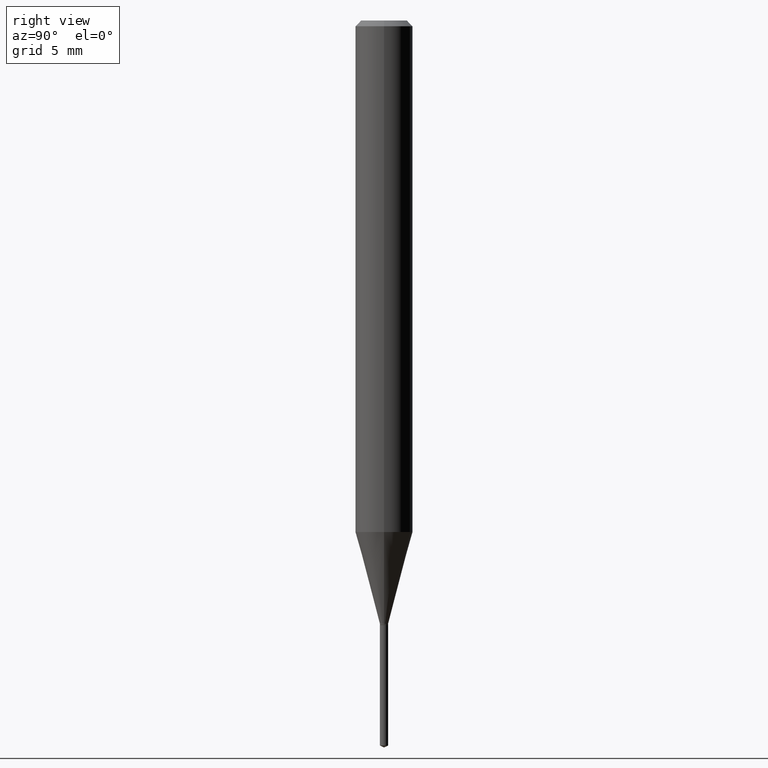
[diagram: clean part render]
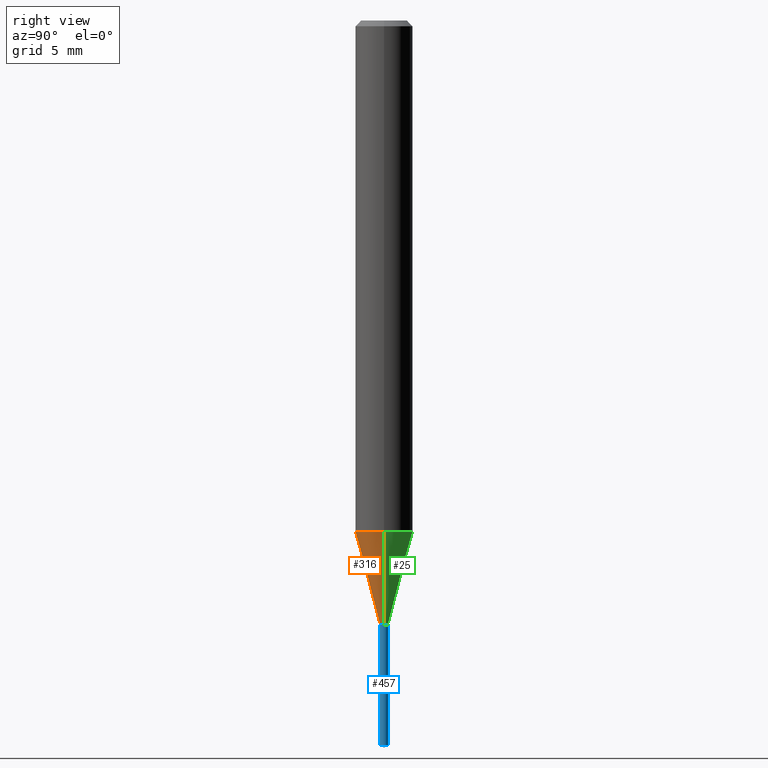
[diagram: same view with three faces highlighted in distinct colors, each labeled with its STEP entity id]
A machine part, right view with three faces highlighted in distinct colors.
Their STEP definitions:

[orange] entity #316 — the highlighted conical surface has half-angle 15 deg.
#3 = LINE ( 'NONE', #297, #263 ) ;
#5 = DIRECTION ( 'NONE',  ( 0.2588190451025211836, 1.565188264969622559E-15, 0.9659258262890679791 ) ) ;
#29 = ORIENTED_EDGE ( 'NONE', *, *, #163, .F. ) ;
#38 = AXIS2_PLACEMENT_3D ( 'NONE', #52, #137, #204 ) ;
#52 = CARTESIAN_POINT ( 'NONE',  ( 3.036294069759465269E-29, -4.335023230307649634E-15, -1.241600000000000037 ) ) ;
#71 = ORIENTED_EDGE ( 'NONE', *, *, #437, .T. ) ;
#86 = CARTESIAN_POINT ( 'NONE',  ( -0.008449999999999999178, -4.274982369135920681E-15, -1.241600000000000037 ) ) ;
#107 = VECTOR ( 'NONE', #230, 39.37007874015748854 ) ;
#118 = AXIS2_PLACEMENT_3D ( 'NONE', #285, #436, #385 ) ;
#133 = VERTEX_POINT ( 'NONE', #459 ) ;
#137 = DIRECTION ( 'NONE',  ( -2.445468806185136597E-29, 3.491481338843145583E-15, 1.000000000000000000 ) ) ;
#141 = VERTEX_POINT ( 'NONE', #270 ) ;
#163 = EDGE_CURVE ( 'NONE', #250, #334, #237, .T. ) ;
#175 = CARTESIAN_POINT ( 'NONE',  ( -0.008449999999999999178, -4.278473850474763688E-15, -1.241600000000000037 ) ) ;
#204 = DIRECTION ( 'NONE',  ( 1.000000000000000000, -6.982962677686293532E-15, 0.000000000000000000 ) ) ;
#228 = CIRCLE ( 'NONE', #118, 0.05905000000000013710 ) ;
#230 = DIRECTION ( 'NONE',  ( -0.2588190451025211836, 5.211531920934547886E-15, 0.9659258262890679791 ) ) ;
#237 = LINE ( 'NONE', #86, #107 ) ;
#248 = FACE_OUTER_BOUND ( 'NONE', #484, .T. ) ;
#250 = VERTEX_POINT ( 'NONE', #175 ) ;
#263 = VECTOR ( 'NONE', #5, 39.37007874015748854 ) ;
#270 = CARTESIAN_POINT ( 'NONE',  ( 0.05905000000000013710, -4.088029657462817781E-15, -1.052758229137014556 ) ) ;
#285 = CARTESIAN_POINT ( 'NONE',  ( 2.574487409809273648E-29, -3.675685711345442861E-15, -1.052758229137014556 ) ) ;
#297 = CARTESIAN_POINT ( 'NONE',  ( 0.008449999999999999178, -4.394029264934098821E-15, -1.241600000000000037 ) ) ;
#298 = ORIENTED_EDGE ( 'NONE', *, *, #341, .F. ) ;
#316 = ADVANCED_FACE ( 'NONE', ( #248 ), #460, .T. ) ;
#334 = VERTEX_POINT ( 'NONE', #364 ) ;
#340 = DIRECTION ( 'NONE',  ( 1.000000000000000000, -6.982962677686293532E-15, 0.000000000000000000 ) ) ;
#341 = EDGE_CURVE ( 'NONE', #334, #141, #228, .T. ) ;
#364 = CARTESIAN_POINT ( 'NONE',  ( -0.05905000000000013710, -3.256110225879102579E-15, -1.052758229137014556 ) ) ;
#368 = DIRECTION ( 'NONE',  ( -2.445468806185136597E-29, 3.491481338843145583E-15, 1.000000000000000000 ) ) ;
#385 = DIRECTION ( 'NONE',  ( 1.000000000000000000, -6.982962677686264344E-15, 0.000000000000000000 ) ) ;
#389 = AXIS2_PLACEMENT_3D ( 'NONE', #485, #368, #340 ) ;
#436 = DIRECTION ( 'NONE',  ( -2.445468806185136597E-29, 3.491481338843145583E-15, 1.000000000000000000 ) ) ;
#437 = EDGE_CURVE ( 'NONE', #250, #133, #480, .T. ) ;
#442 = EDGE_CURVE ( 'NONE', #133, #141, #3, .T. ) ;
#459 = CARTESIAN_POINT ( 'NONE',  ( 0.008449999999999999178, -4.394029264934098821E-15, -1.241600000000000037 ) ) ;
#460 = CONICAL_SURFACE ( 'NONE', #38, 0.008449999999999999178, 0.2617993877991499074 ) ;
#478 = ORIENTED_EDGE ( 'NONE', *, *, #442, .T. ) ;
#480 = CIRCLE ( 'NONE', #389, 0.008449999999999999178 ) ;
#484 = EDGE_LOOP ( 'NONE', ( #29, #71, #478, #298 ) ) ;
#485 = CARTESIAN_POINT ( 'NONE',  ( 3.036294069759465269E-29, -4.335023230307649634E-15, -1.241600000000000037 ) ) ;

[blue] entity #457 — the highlighted cylindrical surface (edge-blend (fillet) strip) has radius 0.2146 mm, axis along (-0, 0, 1).
#11 = CARTESIAN_POINT ( 'NONE',  ( -5.900603462641852024E-17, -0.008450000000004342926, -1.244099999999999984 ) ) ;
#13 = CIRCLE ( 'NONE', #408, 0.008449999999999999178 ) ;
#33 = CARTESIAN_POINT ( 'NONE',  ( 6.004086117175886799E-17, 0.008449999999995655431, -1.244099999999999984 ) ) ;
#40 = EDGE_CURVE ( 'NONE', #152, #94, #367, .T. ) ;
#45 = VECTOR ( 'NONE', #292, 39.37007874015748143 ) ;
#47 = CARTESIAN_POINT ( 'NONE',  ( 6.004086117176494469E-17, 0.008449999999994789804, -1.492159700288590019 ) ) ;
#63 = EDGE_LOOP ( 'NONE', ( #324, #440, #180, #281 ) ) ;
#75 = CYLINDRICAL_SURFACE ( 'NONE', #409, 0.008449999999999999178 ) ;
#94 = VERTEX_POINT ( 'NONE', #384 ) ;
#114 = CARTESIAN_POINT ( 'NONE',  ( 3.042407741774928155E-29, -4.343751933654757151E-15, -1.244099999999999984 ) ) ;
#145 = EDGE_CURVE ( 'NONE', #283, #362, #202, .T. ) ;
#152 = VERTEX_POINT ( 'NONE', #47 ) ;
#159 = CIRCLE ( 'NONE', #167, 0.008449999999999999178 ) ;
#160 = DIRECTION ( 'NONE',  ( -2.445453018118844559E-29, 3.491503948252676758E-15, 1.000000000000000000 ) ) ;
#167 = AXIS2_PLACEMENT_3D ( 'NONE', #423, #178, #361 ) ;
#176 = CARTESIAN_POINT ( 'NONE',  ( -5.900603462641852024E-17, -0.008450000000004342926, -1.244099999999999984 ) ) ;
#178 = DIRECTION ( 'NONE',  ( -2.445453018118844559E-29, 3.491503948252676758E-15, 1.000000000000000000 ) ) ;
#180 = ORIENTED_EDGE ( 'NONE', *, *, #348, .F. ) ;
#202 = LINE ( 'NONE', #11, #211 ) ;
#210 = DIRECTION ( 'NONE',  ( -2.445453018118844559E-29, 3.491503948252676758E-15, 1.000000000000000000 ) ) ;
#211 = VECTOR ( 'NONE', #412, 39.37007874015748143 ) ;
#281 = ORIENTED_EDGE ( 'NONE', *, *, #145, .F. ) ;
#283 = VERTEX_POINT ( 'NONE', #476 ) ;
#292 = DIRECTION ( 'NONE',  ( -2.445453018118844278E-29, 3.491503948252676363E-15, 1.000000000000000000 ) ) ;
#293 = FACE_OUTER_BOUND ( 'NONE', #63, .T. ) ;
#324 = ORIENTED_EDGE ( 'NONE', *, *, #366, .T. ) ;
#348 = EDGE_CURVE ( 'NONE', #362, #94, #159, .T. ) ;
#358 = DIRECTION ( 'NONE',  ( -6.982962677686265922E-15, -1.000000000000000000, 0.000000000000000000 ) ) ;
#361 = DIRECTION ( 'NONE',  ( -6.982962677686265922E-15, -1.000000000000000000, 0.000000000000000000 ) ) ;
#362 = VERTEX_POINT ( 'NONE', #176 ) ;
#366 = EDGE_CURVE ( 'NONE', #283, #152, #13, .T. ) ;
#367 = LINE ( 'NONE', #33, #45 ) ;
#384 = CARTESIAN_POINT ( 'NONE',  ( 6.004086117176498166E-17, 0.008449999999995655431, -1.244099999999999984 ) ) ;
#387 = CARTESIAN_POINT ( 'NONE',  ( 3.649026084519317183E-29, -5.209853356614744857E-15, -1.492159700288590019 ) ) ;
#408 = AXIS2_PLACEMENT_3D ( 'NONE', #387, #210, #358 ) ;
#409 = AXIS2_PLACEMENT_3D ( 'NONE', #114, #160, #411 ) ;
#411 = DIRECTION ( 'NONE',  ( -6.982962677686265922E-15, -1.000000000000000000, 0.000000000000000000 ) ) ;
#412 = DIRECTION ( 'NONE',  ( -2.445453018118844278E-29, 3.491503948252676363E-15, 1.000000000000000000 ) ) ;
#423 = CARTESIAN_POINT ( 'NONE',  ( 3.042407741774928155E-29, -4.343751933654757151E-15, -1.244099999999999984 ) ) ;
#440 = ORIENTED_EDGE ( 'NONE', *, *, #40, .T. ) ;
#457 = ADVANCED_FACE ( 'NONE', ( #293 ), #75, .T. ) ;
#476 = CARTESIAN_POINT ( 'NONE',  ( -5.900603462641245587E-17, -0.008450000000005210288, -1.492159700288590019 ) ) ;

[green] entity #25 — the highlighted conical surface has half-angle 15 deg.
#3 = LINE ( 'NONE', #297, #263 ) ;
#5 = DIRECTION ( 'NONE',  ( 0.2588190451025211836, 1.565188264969622559E-15, 0.9659258262890679791 ) ) ;
#22 = ORIENTED_EDGE ( 'NONE', *, *, #112, .T. ) ;
#25 = ADVANCED_FACE ( 'NONE', ( #330 ), #105, .T. ) ;
#65 = DIRECTION ( 'NONE',  ( 1.000000000000000000, -6.982962677686293532E-15, 0.000000000000000000 ) ) ;
#86 = CARTESIAN_POINT ( 'NONE',  ( -0.008449999999999999178, -4.274982369135920681E-15, -1.241600000000000037 ) ) ;
#98 = CIRCLE ( 'NONE', #469, 0.05905000000000013710 ) ;
#105 = CONICAL_SURFACE ( 'NONE', #173, 0.008449999999999999178, 0.2617993877991499074 ) ;
#107 = VECTOR ( 'NONE', #230, 39.37007874015748854 ) ;
#112 = EDGE_CURVE ( 'NONE', #133, #250, #262, .T. ) ;
#113 = ORIENTED_EDGE ( 'NONE', *, *, #442, .F. ) ;
#122 = DIRECTION ( 'NONE',  ( -2.445468806185136597E-29, 3.491481338843145583E-15, 1.000000000000000000 ) ) ;
#133 = VERTEX_POINT ( 'NONE', #459 ) ;
#139 = CARTESIAN_POINT ( 'NONE',  ( 2.574487409809273648E-29, -3.675685711345442861E-15, -1.052758229137014556 ) ) ;
#141 = VERTEX_POINT ( 'NONE', #270 ) ;
#163 = EDGE_CURVE ( 'NONE', #250, #334, #237, .T. ) ;
#173 = AXIS2_PLACEMENT_3D ( 'NONE', #252, #398, #65 ) ;
#175 = CARTESIAN_POINT ( 'NONE',  ( -0.008449999999999999178, -4.278473850474763688E-15, -1.241600000000000037 ) ) ;
#190 = CARTESIAN_POINT ( 'NONE',  ( 3.036294069759465269E-29, -4.335023230307649634E-15, -1.241600000000000037 ) ) ;
#216 = DIRECTION ( 'NONE',  ( -2.445468806185136597E-29, 3.491481338843145583E-15, 1.000000000000000000 ) ) ;
#230 = DIRECTION ( 'NONE',  ( -0.2588190451025211836, 5.211531920934547886E-15, 0.9659258262890679791 ) ) ;
#237 = LINE ( 'NONE', #86, #107 ) ;
#245 = DIRECTION ( 'NONE',  ( 1.000000000000000000, -6.982962677686264344E-15, 0.000000000000000000 ) ) ;
#250 = VERTEX_POINT ( 'NONE', #175 ) ;
#252 = CARTESIAN_POINT ( 'NONE',  ( 3.036294069759465269E-29, -4.335023230307649634E-15, -1.241600000000000037 ) ) ;
#262 = CIRCLE ( 'NONE', #441, 0.008449999999999999178 ) ;
#263 = VECTOR ( 'NONE', #5, 39.37007874015748854 ) ;
#267 = DIRECTION ( 'NONE',  ( 1.000000000000000000, -6.982962677686293532E-15, 0.000000000000000000 ) ) ;
#270 = CARTESIAN_POINT ( 'NONE',  ( 0.05905000000000013710, -4.088029657462817781E-15, -1.052758229137014556 ) ) ;
#275 = ORIENTED_EDGE ( 'NONE', *, *, #304, .F. ) ;
#297 = CARTESIAN_POINT ( 'NONE',  ( 0.008449999999999999178, -4.394029264934098821E-15, -1.241600000000000037 ) ) ;
#304 = EDGE_CURVE ( 'NONE', #141, #334, #98, .T. ) ;
#330 = FACE_OUTER_BOUND ( 'NONE', #372, .T. ) ;
#334 = VERTEX_POINT ( 'NONE', #364 ) ;
#364 = CARTESIAN_POINT ( 'NONE',  ( -0.05905000000000013710, -3.256110225879102579E-15, -1.052758229137014556 ) ) ;
#372 = EDGE_LOOP ( 'NONE', ( #22, #482, #275, #113 ) ) ;
#398 = DIRECTION ( 'NONE',  ( -2.445468806185136597E-29, 3.491481338843145583E-15, 1.000000000000000000 ) ) ;
#441 = AXIS2_PLACEMENT_3D ( 'NONE', #190, #122, #267 ) ;
#442 = EDGE_CURVE ( 'NONE', #133, #141, #3, .T. ) ;
#459 = CARTESIAN_POINT ( 'NONE',  ( 0.008449999999999999178, -4.394029264934098821E-15, -1.241600000000000037 ) ) ;
#469 = AXIS2_PLACEMENT_3D ( 'NONE', #139, #216, #245 ) ;
#482 = ORIENTED_EDGE ( 'NONE', *, *, #163, .T. ) ;